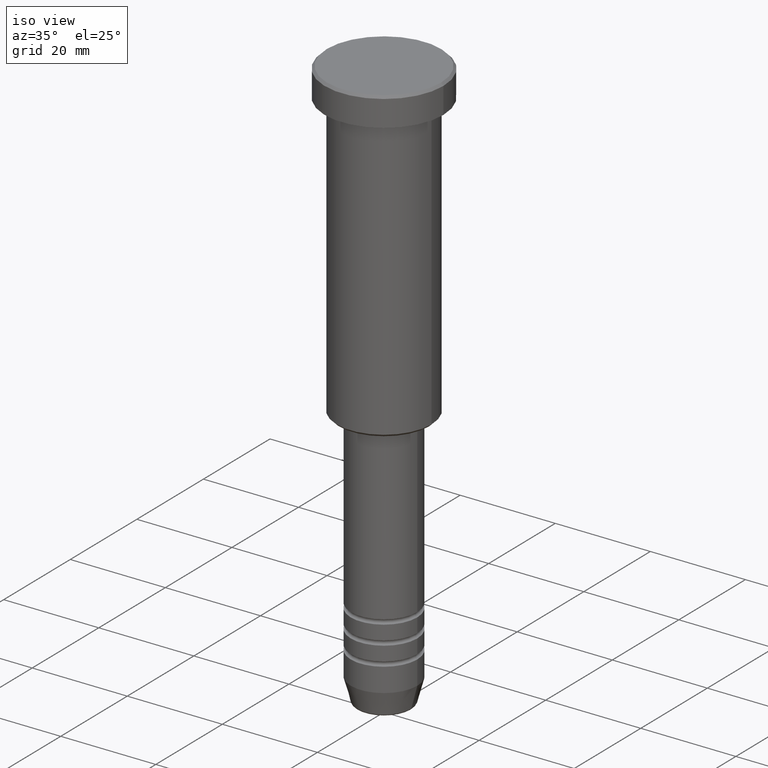
[diagram: clean part render]
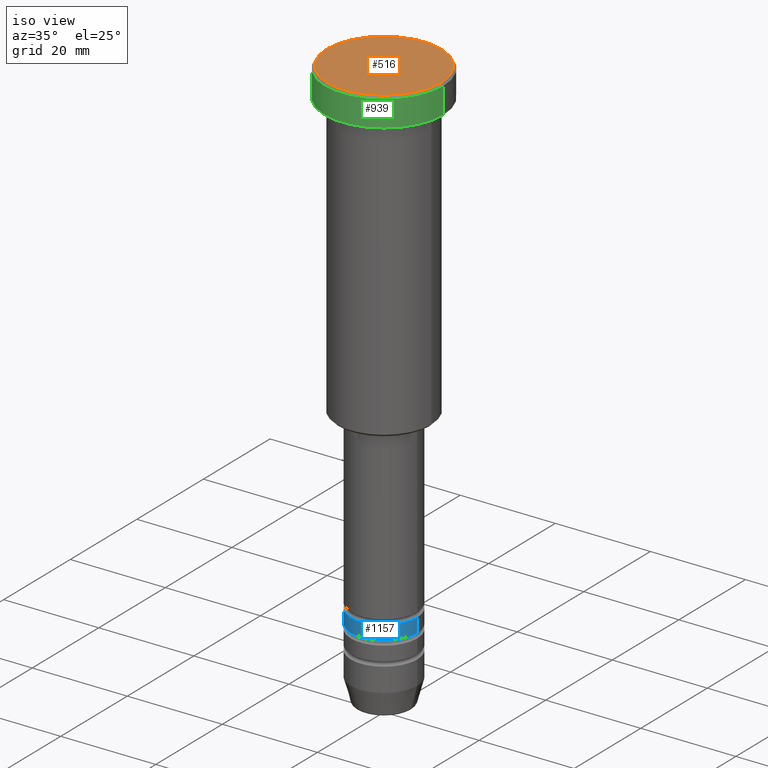
[diagram: same view with three faces highlighted in distinct colors, each labeled with its STEP entity id]
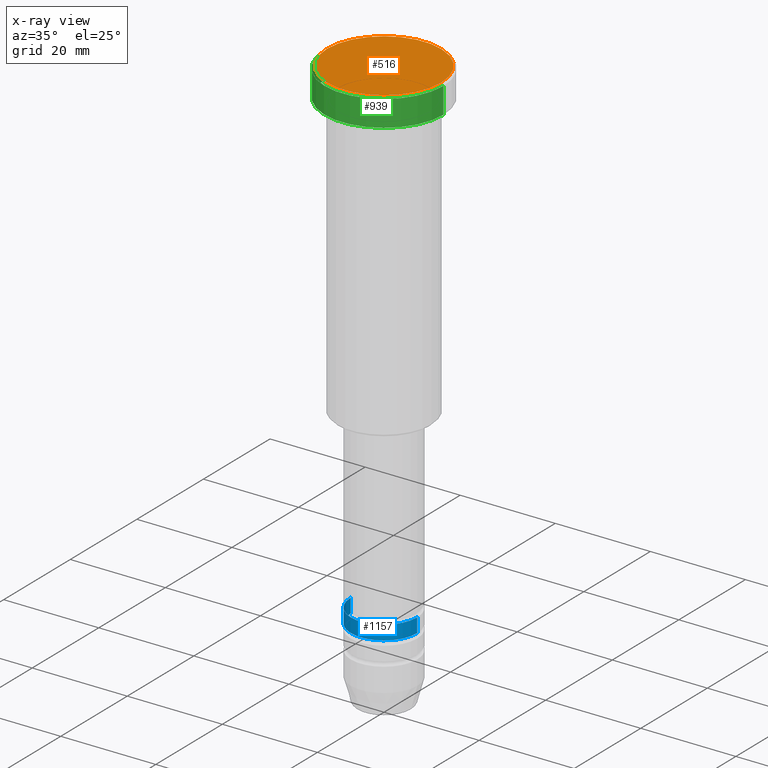
[diagram: x-ray of the same camera — body ghosted, the three highlighted faces saturated]
A machine part, iso view with three faces highlighted in distinct colors.
The next image is the same camera in x-ray (body ghosted, the three faces saturated) — at least one of them is partly hidden behind the body in this view.
Their STEP definitions:

[orange] entity #516 — the highlighted planar face has unit normal (0, -0, 1).
#14 = ORIENTED_EDGE ( 'NONE', *, *, #895, .T. ) ;
#74 = CARTESIAN_POINT ( 'NONE',  ( 0.000000000000000000, 0.000000000000000000, 0.000000000000000000 ) ) ;
#143 = CIRCLE ( 'NONE', #426, 12.00000000000002487 ) ;
#148 = AXIS2_PLACEMENT_3D ( 'NONE', #74, #879, #246 ) ;
#187 = CIRCLE ( 'NONE', #148, 12.00000000000002487 ) ;
#224 = ORIENTED_EDGE ( 'NONE', *, *, #437, .T. ) ;
#226 = CARTESIAN_POINT ( 'NONE',  ( 0.000000000000000000, 0.000000000000000000, 0.000000000000000000 ) ) ;
#246 = DIRECTION ( 'NONE',  ( 1.000000000000000000, 0.000000000000000000, 0.000000000000000000 ) ) ;
#288 = DIRECTION ( 'NONE',  ( 1.000000000000000000, 0.000000000000000000, 0.000000000000000000 ) ) ;
#308 = CARTESIAN_POINT ( 'NONE',  ( -12.00000000000002487, 0.000000000000000000, 0.000000000000000000 ) ) ;
#315 = VERTEX_POINT ( 'NONE', #910 ) ;
#426 = AXIS2_PLACEMENT_3D ( 'NONE', #729, #932, #288 ) ;
#437 = EDGE_CURVE ( 'NONE', #1072, #315, #143, .T. ) ;
#516 = ADVANCED_FACE ( 'NONE', ( #676 ), #746, .T. ) ;
#585 = DIRECTION ( 'NONE',  ( 1.000000000000000000, 0.000000000000000000, 0.000000000000000000 ) ) ;
#676 = FACE_OUTER_BOUND ( 'NONE', #1038, .T. ) ;
#729 = CARTESIAN_POINT ( 'NONE',  ( 0.000000000000000000, 0.000000000000000000, 0.000000000000000000 ) ) ;
#746 = PLANE ( 'NONE',  #1125 ) ;
#879 = DIRECTION ( 'NONE',  ( -0.000000000000000000, -0.000000000000000000, 1.000000000000000000 ) ) ;
#895 = EDGE_CURVE ( 'NONE', #315, #1072, #187, .T. ) ;
#910 = CARTESIAN_POINT ( 'NONE',  ( 12.00000000000002487, 1.500192328955509115E-15, 0.000000000000000000 ) ) ;
#932 = DIRECTION ( 'NONE',  ( -0.000000000000000000, -0.000000000000000000, 1.000000000000000000 ) ) ;
#952 = DIRECTION ( 'NONE',  ( 0.000000000000000000, -0.000000000000000000, 1.000000000000000000 ) ) ;
#1038 = EDGE_LOOP ( 'NONE', ( #224, #14 ) ) ;
#1072 = VERTEX_POINT ( 'NONE', #308 ) ;
#1125 = AXIS2_PLACEMENT_3D ( 'NONE', #226, #952, #585 ) ;

[blue] entity #1157 — the highlighted cylindrical surface (partial cylindrical patch) has radius 7 mm, axis along (-0, -0, 1).
#31 = DIRECTION ( 'NONE',  ( 1.000000000000000000, 0.000000000000000000, 0.000000000000000000 ) ) ;
#68 = FACE_OUTER_BOUND ( 'NONE', #1108, .T. ) ;
#129 = ORIENTED_EDGE ( 'NONE', *, *, #473, .F. ) ;
#195 = DIRECTION ( 'NONE',  ( -0.000000000000000000, -0.000000000000000000, 1.000000000000000000 ) ) ;
#221 = CIRCLE ( 'NONE', #965, 7.000000000000002665 ) ;
#234 = DIRECTION ( 'NONE',  ( -0.000000000000000000, -0.000000000000000000, 1.000000000000000000 ) ) ;
#261 = AXIS2_PLACEMENT_3D ( 'NONE', #303, #1136, #31 ) ;
#279 = CIRCLE ( 'NONE', #261, 7.000000000000000000 ) ;
#300 = AXIS2_PLACEMENT_3D ( 'NONE', #427, #1161, #792 ) ;
#303 = CARTESIAN_POINT ( 'NONE',  ( 0.000000000000000000, 0.000000000000000000, -102.9999999999999005 ) ) ;
#326 = DIRECTION ( 'NONE',  ( 1.000000000000000000, 0.000000000000000000, 0.000000000000000000 ) ) ;
#337 = CARTESIAN_POINT ( 'NONE',  ( 7.000000000000000888, 0.000000000000000000, 0.000000000000000000 ) ) ;
#341 = CARTESIAN_POINT ( 'NONE',  ( 7.000000000000002665, 0.000000000000000000, -105.9999999999999147 ) ) ;
#405 = CYLINDRICAL_SURFACE ( 'NONE', #300, 7.000000000000000888 ) ;
#427 = CARTESIAN_POINT ( 'NONE',  ( 0.000000000000000000, 0.000000000000000000, 0.000000000000000000 ) ) ;
#428 = VECTOR ( 'NONE', #234, 1000.000000000000000 ) ;
#459 = CARTESIAN_POINT ( 'NONE',  ( -7.000000000000002665, 8.572527594031475162E-16, -105.9999999999999147 ) ) ;
#473 = EDGE_CURVE ( 'NONE', #1122, #1056, #1017, .T. ) ;
#543 = EDGE_CURVE ( 'NONE', #1056, #759, #279, .T. ) ;
#588 = ORIENTED_EDGE ( 'NONE', *, *, #1146, .T. ) ;
#618 = EDGE_CURVE ( 'NONE', #951, #759, #681, .T. ) ;
#655 = VECTOR ( 'NONE', #195, 1000.000000000000000 ) ;
#681 = LINE ( 'NONE', #337, #428 ) ;
#685 = CARTESIAN_POINT ( 'NONE',  ( 7.000000000000000000, 0.000000000000000000, -102.9999999999999005 ) ) ;
#701 = DIRECTION ( 'NONE',  ( -0.000000000000000000, -0.000000000000000000, 1.000000000000000000 ) ) ;
#716 = ORIENTED_EDGE ( 'NONE', *, *, #618, .T. ) ;
#722 = ORIENTED_EDGE ( 'NONE', *, *, #543, .F. ) ;
#759 = VERTEX_POINT ( 'NONE', #685 ) ;
#792 = DIRECTION ( 'NONE',  ( 1.000000000000000000, 0.000000000000000000, 0.000000000000000000 ) ) ;
#951 = VERTEX_POINT ( 'NONE', #341 ) ;
#958 = CARTESIAN_POINT ( 'NONE',  ( 0.000000000000000000, 0.000000000000000000, -105.9999999999999147 ) ) ;
#965 = AXIS2_PLACEMENT_3D ( 'NONE', #958, #701, #326 ) ;
#1017 = LINE ( 'NONE', #1099, #655 ) ;
#1056 = VERTEX_POINT ( 'NONE', #1091 ) ;
#1091 = CARTESIAN_POINT ( 'NONE',  ( -7.000000000000000000, 8.572527594031473190E-16, -102.9999999999999005 ) ) ;
#1099 = CARTESIAN_POINT ( 'NONE',  ( -7.000000000000000888, 8.572527594031474176E-16, 0.000000000000000000 ) ) ;
#1108 = EDGE_LOOP ( 'NONE', ( #129, #588, #716, #722 ) ) ;
#1122 = VERTEX_POINT ( 'NONE', #459 ) ;
#1136 = DIRECTION ( 'NONE',  ( -0.000000000000000000, -0.000000000000000000, 1.000000000000000000 ) ) ;
#1146 = EDGE_CURVE ( 'NONE', #1122, #951, #221, .T. ) ;
#1157 = ADVANCED_FACE ( 'NONE', ( #68 ), #405, .T. ) ;
#1161 = DIRECTION ( 'NONE',  ( -0.000000000000000000, -0.000000000000000000, 1.000000000000000000 ) ) ;

[green] entity #939 — the highlighted cylindrical surface (partial cylindrical patch) has radius 12.5 mm, axis along (-0, -0, 1).
#7 = CARTESIAN_POINT ( 'NONE',  ( -12.50000000000000000, 1.530808498934191521E-15, -5.999999999999996447 ) ) ;
#8 = CARTESIAN_POINT ( 'NONE',  ( 0.000000000000000000, 0.000000000000000000, -5.999999999999996447 ) ) ;
#30 = DIRECTION ( 'NONE',  ( -0.000000000000000000, -0.000000000000000000, 1.000000000000000000 ) ) ;
#53 = AXIS2_PLACEMENT_3D ( 'NONE', #8, #30, #1025 ) ;
#57 = ORIENTED_EDGE ( 'NONE', *, *, #173, .T. ) ;
#112 = LINE ( 'NONE', #469, #563 ) ;
#127 = AXIS2_PLACEMENT_3D ( 'NONE', #518, #404, #142 ) ;
#136 = EDGE_CURVE ( 'NONE', #744, #449, #983, .T. ) ;
#142 = DIRECTION ( 'NONE',  ( 1.000000000000000000, 0.000000000000000000, 0.000000000000000000 ) ) ;
#173 = EDGE_CURVE ( 'NONE', #702, #744, #1098, .T. ) ;
#228 = FACE_OUTER_BOUND ( 'NONE', #908, .T. ) ;
#268 = CARTESIAN_POINT ( 'NONE',  ( 12.50000000000000000, 0.000000000000000000, -5.999999999999996447 ) ) ;
#311 = ORIENTED_EDGE ( 'NONE', *, *, #717, .T. ) ;
#319 = VERTEX_POINT ( 'NONE', #7 ) ;
#404 = DIRECTION ( 'NONE',  ( -0.000000000000000000, -0.000000000000000000, 1.000000000000000000 ) ) ;
#410 = DIRECTION ( 'NONE',  ( -0.000000000000000000, -0.000000000000000000, 1.000000000000000000 ) ) ;
#447 = CIRCLE ( 'NONE', #53, 12.50000000000000000 ) ;
#449 = VERTEX_POINT ( 'NONE', #561 ) ;
#457 = EDGE_CURVE ( 'NONE', #319, #449, #112, .T. ) ;
#462 = AXIS2_PLACEMENT_3D ( 'NONE', #551, #822, #566 ) ;
#469 = CARTESIAN_POINT ( 'NONE',  ( -12.50000000000000000, 1.530808498934191521E-15, 0.000000000000000000 ) ) ;
#518 = CARTESIAN_POINT ( 'NONE',  ( 0.000000000000000000, 0.000000000000000000, 0.000000000000000000 ) ) ;
#551 = CARTESIAN_POINT ( 'NONE',  ( 0.000000000000000000, 0.000000000000000000, -0.4999999999999917843 ) ) ;
#561 = CARTESIAN_POINT ( 'NONE',  ( -12.50000000000000000, 1.530808498934191521E-15, -0.4999999999999917843 ) ) ;
#563 = VECTOR ( 'NONE', #410, 1000.000000000000000 ) ;
#566 = DIRECTION ( 'NONE',  ( 1.000000000000000000, 0.000000000000000000, 0.000000000000000000 ) ) ;
#602 = ORIENTED_EDGE ( 'NONE', *, *, #457, .F. ) ;
#610 = CARTESIAN_POINT ( 'NONE',  ( 12.50000000000000000, 0.000000000000000000, -0.4999999999999917843 ) ) ;
#651 = ORIENTED_EDGE ( 'NONE', *, *, #136, .T. ) ;
#702 = VERTEX_POINT ( 'NONE', #268 ) ;
#717 = EDGE_CURVE ( 'NONE', #319, #702, #447, .T. ) ;
#744 = VERTEX_POINT ( 'NONE', #610 ) ;
#822 = DIRECTION ( 'NONE',  ( 0.000000000000000000, 0.000000000000000000, -1.000000000000000000 ) ) ;
#855 = DIRECTION ( 'NONE',  ( -0.000000000000000000, -0.000000000000000000, 1.000000000000000000 ) ) ;
#908 = EDGE_LOOP ( 'NONE', ( #602, #311, #57, #651 ) ) ;
#939 = ADVANCED_FACE ( 'NONE', ( #228 ), #956, .T. ) ;
#941 = VECTOR ( 'NONE', #855, 1000.000000000000000 ) ;
#956 = CYLINDRICAL_SURFACE ( 'NONE', #127, 12.50000000000000000 ) ;
#983 = CIRCLE ( 'NONE', #462, 12.50000000000000000 ) ;
#1025 = DIRECTION ( 'NONE',  ( 1.000000000000000000, 0.000000000000000000, 0.000000000000000000 ) ) ;
#1098 = LINE ( 'NONE', #1131, #941 ) ;
#1131 = CARTESIAN_POINT ( 'NONE',  ( 12.50000000000000000, 0.000000000000000000, 0.000000000000000000 ) ) ;